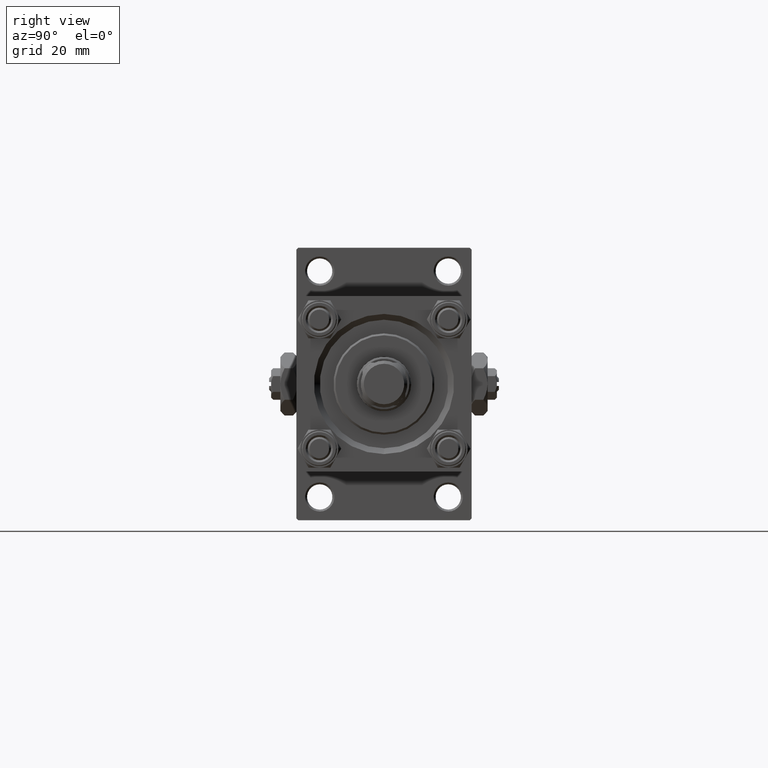
[diagram: clean part render]
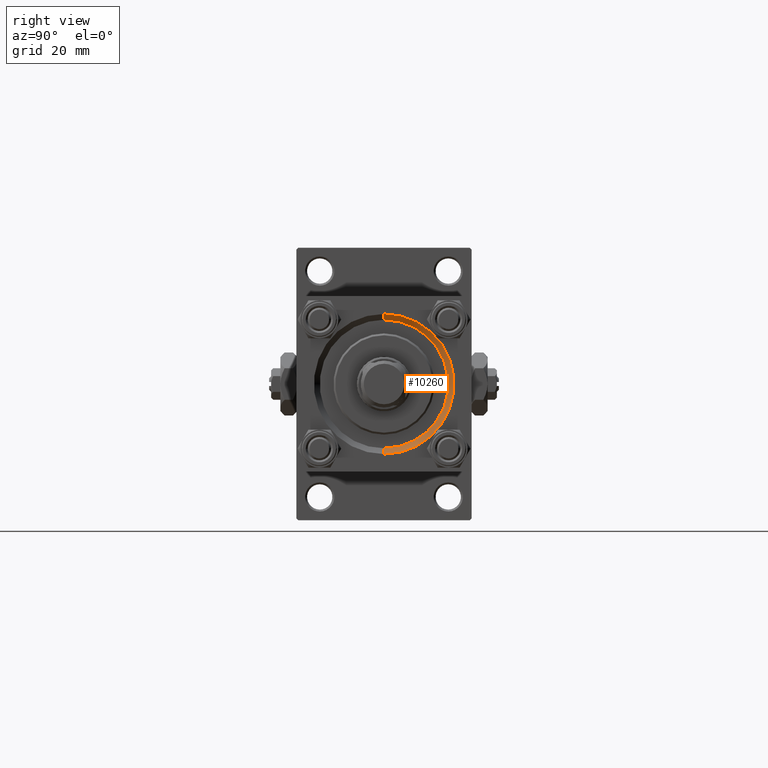
[diagram: same view with one face highlighted and labeled with its STEP entity id]
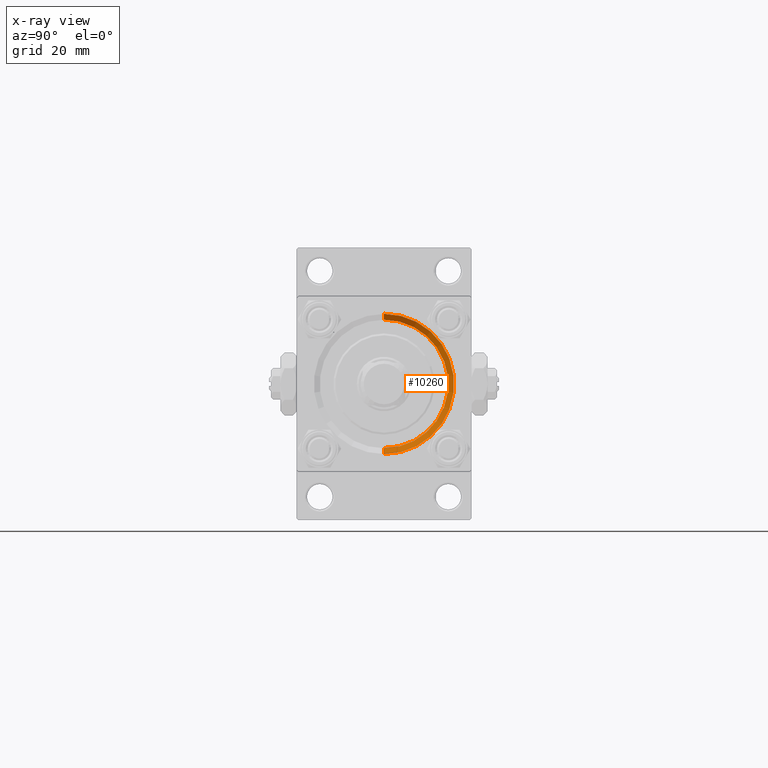
[diagram: x-ray of the same camera — body ghosted, the highlighted face saturated]
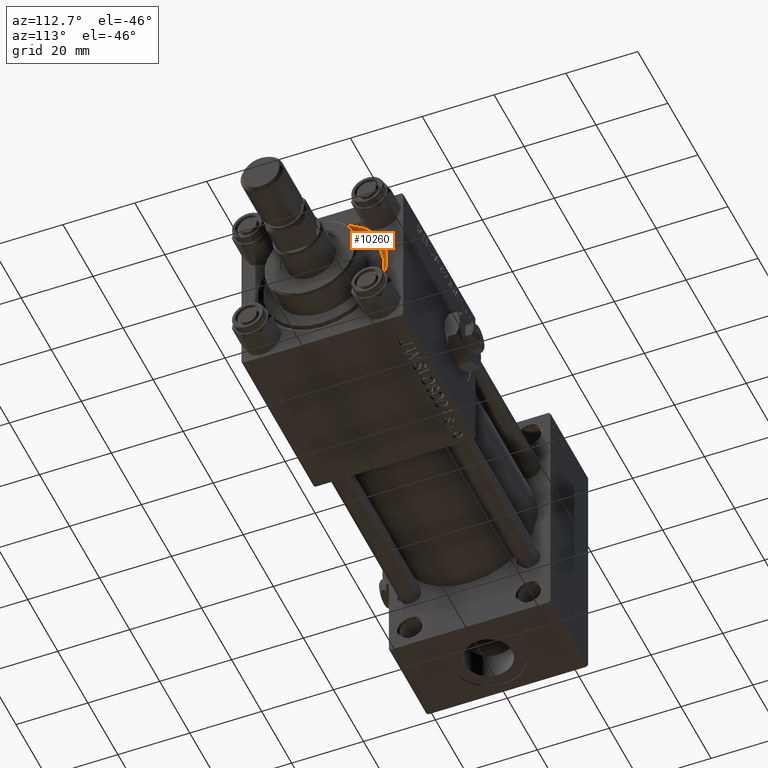
[diagram: same view with one face highlighted and labeled with its STEP entity id]
A machine part, right view. The second image highlights one B-rep face of the part: STEP entity #10260.
The next image is the same camera in x-ray: the body ghosted, the highlighted face saturated — about 0% of this face is hidden behind the body in this view.
A second angle (auxiliary view) of the same face is appended — the face is thin or edge-on in the first view.
In plain terms, the highlighted conical surface has half-angle 45 deg.
Its self-contained STEP definition (entity closure, byte-faithful):
#2660 = EDGE_CURVE ( 'NONE', #22040, #20439, #13289, .T. ) ;
#3721 = FACE_OUTER_BOUND ( 'NONE', #44696, .T. ) ;
#4159 = ORIENTED_EDGE ( 'NONE', *, *, #9194, .F. ) ;
#5008 = DIRECTION ( 'NONE',  ( 1.000000000000000000, 0.000000000000000000, 0.000000000000000000 ) ) ;
#6130 = DIRECTION ( 'NONE',  ( 0.000000000000000000, 0.000000000000000000, 1.000000000000000000 ) ) ;
#9194 = EDGE_CURVE ( 'NONE', #47914, #41466, #12692, .T. ) ;
#9345 = DIRECTION ( 'NONE',  ( 0.7071067811865507924, 0.000000000000000000, -0.7071067811865441310 ) ) ;
#10260 = ADVANCED_FACE ( 'NONE', ( #3721 ), #27865, .F. ) ;
#12692 = LINE ( 'NONE', #16902, #37894 ) ;
#13060 = ORIENTED_EDGE ( 'NONE', *, *, #34748, .F. ) ;
#13289 = LINE ( 'NONE', #29382, #47828 ) ;
#14807 = EDGE_CURVE ( 'NONE', #22040, #47914, #15323, .T. ) ;
#15323 = CIRCLE ( 'NONE', #44805, 16.50000000000000000 ) ;
#16636 = DIRECTION ( 'NONE',  ( 0.7071067811865507924, 8.659560562354892183E-17, 0.7071067811865441310 ) ) ;
#16902 = CARTESIAN_POINT ( 'NONE',  ( 121.5000000000000000, 2.020667218593133100E-15, 16.50000000000000000 ) ) ;
#17335 = CARTESIAN_POINT ( 'NONE',  ( 123.0000000000000142, 2.204364238465235822E-15, 18.00000000000000355 ) ) ;
#17714 = AXIS2_PLACEMENT_3D ( 'NONE', #41138, #5008, #29525 ) ;
#17945 = CARTESIAN_POINT ( 'NONE',  ( 123.0000000000000142, 0.000000000000000000, -18.00000000000000355 ) ) ;
#18837 = CARTESIAN_POINT ( 'NONE',  ( 121.5000000000000000, 0.000000000000000000, -16.50000000000000000 ) ) ;
#20048 = DIRECTION ( 'NONE',  ( 0.000000000000000000, 0.000000000000000000, 1.000000000000000000 ) ) ;
#20306 = CARTESIAN_POINT ( 'NONE',  ( 121.5000000000000000, 0.000000000000000000, 0.000000000000000000 ) ) ;
#20439 = VERTEX_POINT ( 'NONE', #17945 ) ;
#20554 = DIRECTION ( 'NONE',  ( 1.000000000000000000, 0.000000000000000000, 0.000000000000000000 ) ) ;
#22040 = VERTEX_POINT ( 'NONE', #18837 ) ;
#27511 = ORIENTED_EDGE ( 'NONE', *, *, #14807, .F. ) ;
#27865 = CONICAL_SURFACE ( 'NONE', #17714, 16.50000000000000000, 0.7853981633974437271 ) ;
#28357 = AXIS2_PLACEMENT_3D ( 'NONE', #34317, #49667, #6130 ) ;
#29382 = CARTESIAN_POINT ( 'NONE',  ( 121.5000000000000000, 0.000000000000000000, -16.50000000000000000 ) ) ;
#29525 = DIRECTION ( 'NONE',  ( 0.000000000000000000, 0.000000000000000000, -1.000000000000000000 ) ) ;
#34317 = CARTESIAN_POINT ( 'NONE',  ( 123.0000000000000142, 0.000000000000000000, 0.000000000000000000 ) ) ;
#34748 = EDGE_CURVE ( 'NONE', #41466, #20439, #51131, .T. ) ;
#37894 = VECTOR ( 'NONE', #16636, 1000.000000000000114 ) ;
#41138 = CARTESIAN_POINT ( 'NONE',  ( 121.5000000000000000, 0.000000000000000000, 0.000000000000000000 ) ) ;
#41466 = VERTEX_POINT ( 'NONE', #17335 ) ;
#44696 = EDGE_LOOP ( 'NONE', ( #4159, #27511, #46905, #13060 ) ) ;
#44805 = AXIS2_PLACEMENT_3D ( 'NONE', #20306, #20554, #20048 ) ;
#46905 = ORIENTED_EDGE ( 'NONE', *, *, #2660, .T. ) ;
#47593 = CARTESIAN_POINT ( 'NONE',  ( 121.5000000000000000, 2.020667218593133100E-15, 16.50000000000000000 ) ) ;
#47828 = VECTOR ( 'NONE', #9345, 1000.000000000000114 ) ;
#47914 = VERTEX_POINT ( 'NONE', #47593 ) ;
#49667 = DIRECTION ( 'NONE',  ( -1.000000000000000000, 0.000000000000000000, -0.000000000000000000 ) ) ;
#51131 = CIRCLE ( 'NONE', #28357, 18.00000000000000355 ) ;